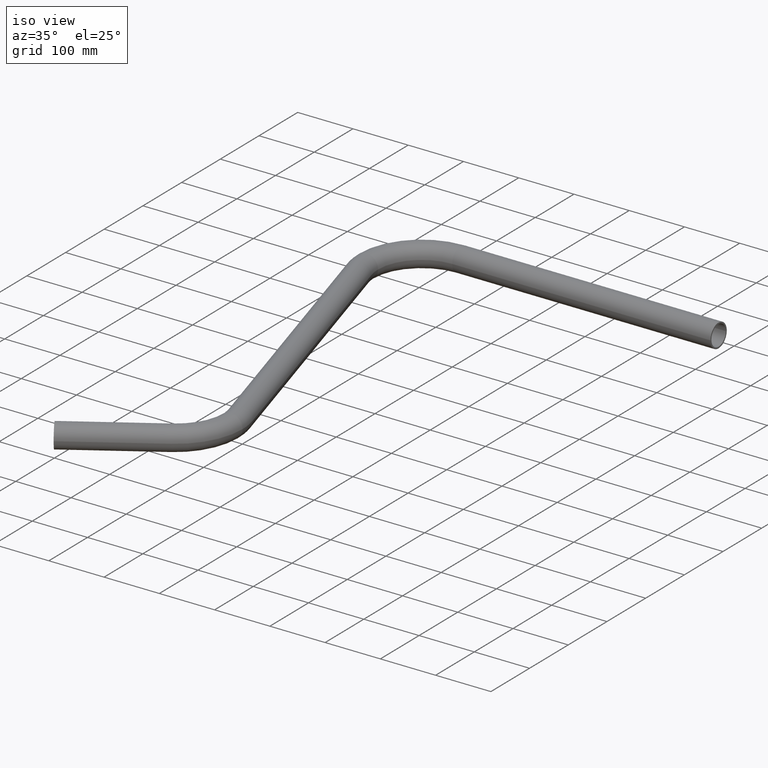
[diagram: clean part render]
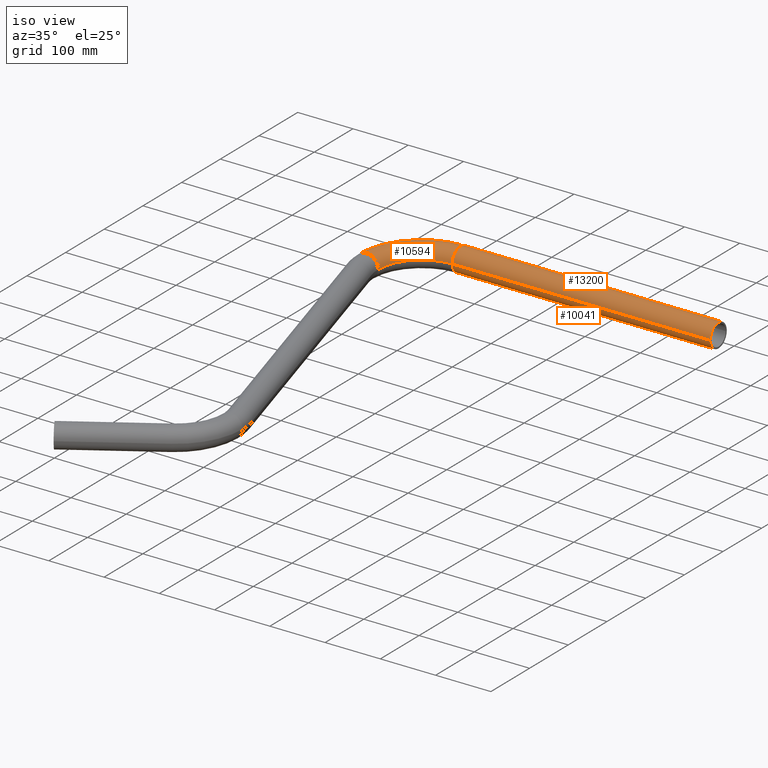
[diagram: same view with one multi-face feature highlighted, each face labeled with its STEP entity id]
A machine part, iso view. The highlighted faces form ONE feature: a constant-radius fillet chain: 3 tangent blend faces with common blend radius 21.2 mm. The faces share edges in the B-rep.
Their STEP definitions:
[1] entity #10041 (Cylinder):
#104 = DIRECTION ( 'NONE',  ( 1.000000000000000000, -4.751695585533869400E-016, 0.0000000000000000000 ) ) ;
#296 = CARTESIAN_POINT ( 'NONE',  ( 138.5397640499743100, 830.3035646201642500, 2.596251214192389600E-015 ) ) ;
#606 = FACE_OUTER_BOUND ( 'NONE', #9191, .T. ) ;
#977 = EDGE_CURVE ( 'NONE', #10557, #7068, #6277, .T. ) ;
#1151 = DIRECTION ( 'NONE',  ( 0.0000000000000000000, 1.000000000000000000, 0.0000000000000000000 ) ) ;
#1652 = ORIENTED_EDGE ( 'NONE', *, *, #977, .F. ) ;
#1708 = DIRECTION ( 'NONE',  ( 1.000000000000000000, -4.751695585533869400E-016, 0.0000000000000000000 ) ) ;
#2468 = ORIENTED_EDGE ( 'NONE', *, *, #7839, .T. ) ;
#2560 = DIRECTION ( 'NONE',  ( 1.000000000000000000, 1.532107773982715700E-014, -3.826221258505971600E-017 ) ) ;
#3075 = CYLINDRICAL_SURFACE ( 'NONE', #12829, 21.19999999999999600 ) ;
#4173 = CARTESIAN_POINT ( 'NONE',  ( 138.5397640499745900, 830.3035646201642500, 2.596251214192389200E-015 ) ) ;
#4392 = LINE ( 'NONE', #4173, #12602 ) ;
#5725 = CARTESIAN_POINT ( 'NONE',  ( 138.5397640499745900, 872.7035646201643400, 0.0000000000000000000 ) ) ;
#5770 = EDGE_CURVE ( 'NONE', #13050, #7068, #13046, .T. ) ;
#6015 = CARTESIAN_POINT ( 'NONE',  ( 138.5397640499743100, 851.5035646201643000, 0.0000000000000000000 ) ) ;
#6112 = ORIENTED_EDGE ( 'NONE', *, *, #10978, .F. ) ;
#6277 = CIRCLE ( 'NONE', #6385, 21.19999999999999600 ) ;
#6385 = AXIS2_PLACEMENT_3D ( 'NONE', #8767, #2560, #9795 ) ;
#7026 = ORIENTED_EDGE ( 'NONE', *, *, #5770, .T. ) ;
#7043 = CARTESIAN_POINT ( 'NONE',  ( 605.8352818879170600, 830.3035646201640200, 2.596251214192378500E-015 ) ) ;
#7052 = DIRECTION ( 'NONE',  ( 0.0000000000000000000, 1.000000000000000000, 0.0000000000000000000 ) ) ;
#7068 = VERTEX_POINT ( 'NONE', #11214 ) ;
#7642 = VERTEX_POINT ( 'NONE', #296 ) ;
#7839 = EDGE_CURVE ( 'NONE', #7642, #13050, #13247, .T. ) ;
#7883 = VECTOR ( 'NONE', #1708, 1000.000000000000000 ) ;
#8716 = AXIS2_PLACEMENT_3D ( 'NONE', #6015, #13241, #7052 ) ;
#8767 = CARTESIAN_POINT ( 'NONE',  ( 605.8352818879167200, 851.5035646201640700, 0.0000000000000000000 ) ) ;
#9191 = EDGE_LOOP ( 'NONE', ( #6112, #2468, #7026, #1652 ) ) ;
#9795 = DIRECTION ( 'NONE',  ( -1.571070317865787900E-014, 1.000000000000000000, 0.0000000000000000000 ) ) ;
#10041 = ADVANCED_FACE ( 'NONE', ( #606 ), #3075, .T. ) ;
#10557 = VERTEX_POINT ( 'NONE', #7043 ) ;
#10978 = EDGE_CURVE ( 'NONE', #7642, #10557, #4392, .T. ) ;
#11214 = CARTESIAN_POINT ( 'NONE',  ( 605.8352818879163800, 872.7035646201641200, 0.0000000000000000000 ) ) ;
#11514 = CARTESIAN_POINT ( 'NONE',  ( 138.5397640499745900, 851.5035646201643000, 0.0000000000000000000 ) ) ;
#12416 = DIRECTION ( 'NONE',  ( 1.000000000000000000, -4.751695585533869400E-016, 0.0000000000000000000 ) ) ;
#12602 = VECTOR ( 'NONE', #12416, 1000.000000000000000 ) ;
#12829 = AXIS2_PLACEMENT_3D ( 'NONE', #11514, #104, #1151 ) ;
#13046 = LINE ( 'NONE', #5725, #7883 ) ;
#13050 = VERTEX_POINT ( 'NONE', #13450 ) ;
#13241 = DIRECTION ( 'NONE',  ( 1.000000000000000000, -4.751695585533869400E-016, 0.0000000000000000000 ) ) ;
#13247 = CIRCLE ( 'NONE', #8716, 21.19999999999999600 ) ;
#13450 = CARTESIAN_POINT ( 'NONE',  ( 138.5397640499743100, 872.7035646201643400, 0.0000000000000000000 ) ) ;
[2] entity #13200 (Cylinder):
#296 = CARTESIAN_POINT ( 'NONE',  ( 138.5397640499743100, 830.3035646201642500, 2.596251214192389600E-015 ) ) ;
#1708 = DIRECTION ( 'NONE',  ( 1.000000000000000000, -4.751695585533869400E-016, 0.0000000000000000000 ) ) ;
#2759 = CIRCLE ( 'NONE', #11057, 21.19999999999999600 ) ;
#3159 = AXIS2_PLACEMENT_3D ( 'NONE', #4535, #11699, #11739 ) ;
#4173 = CARTESIAN_POINT ( 'NONE',  ( 138.5397640499745900, 830.3035646201642500, 2.596251214192389200E-015 ) ) ;
#4392 = LINE ( 'NONE', #4173, #12602 ) ;
#4535 = CARTESIAN_POINT ( 'NONE',  ( 138.5397640499745900, 851.5035646201643000, 0.0000000000000000000 ) ) ;
#4585 = CARTESIAN_POINT ( 'NONE',  ( 138.5397640499743100, 851.5035646201643000, 0.0000000000000000000 ) ) ;
#5416 = ORIENTED_EDGE ( 'NONE', *, *, #5770, .F. ) ;
#5592 = DIRECTION ( 'NONE',  ( 0.0000000000000000000, 1.000000000000000000, 0.0000000000000000000 ) ) ;
#5725 = CARTESIAN_POINT ( 'NONE',  ( 138.5397640499745900, 872.7035646201643400, 0.0000000000000000000 ) ) ;
#5752 = DIRECTION ( 'NONE',  ( 1.000000000000000000, 1.532107773982715700E-014, -3.826221258505971600E-017 ) ) ;
#5770 = EDGE_CURVE ( 'NONE', #13050, #7068, #13046, .T. ) ;
#6522 = ORIENTED_EDGE ( 'NONE', *, *, #7248, .T. ) ;
#6635 = AXIS2_PLACEMENT_3D ( 'NONE', #11957, #5752, #12978 ) ;
#7043 = CARTESIAN_POINT ( 'NONE',  ( 605.8352818879170600, 830.3035646201640200, 2.596251214192378500E-015 ) ) ;
#7068 = VERTEX_POINT ( 'NONE', #11214 ) ;
#7248 = EDGE_CURVE ( 'NONE', #13050, #7642, #2759, .T. ) ;
#7642 = VERTEX_POINT ( 'NONE', #296 ) ;
#7695 = EDGE_CURVE ( 'NONE', #7068, #10557, #11495, .T. ) ;
#7883 = VECTOR ( 'NONE', #1708, 1000.000000000000000 ) ;
#10557 = VERTEX_POINT ( 'NONE', #7043 ) ;
#10978 = EDGE_CURVE ( 'NONE', #7642, #10557, #4392, .T. ) ;
#11049 = CYLINDRICAL_SURFACE ( 'NONE', #3159, 21.19999999999999600 ) ;
#11057 = AXIS2_PLACEMENT_3D ( 'NONE', #4585, #11792, #5592 ) ;
#11214 = CARTESIAN_POINT ( 'NONE',  ( 605.8352818879163800, 872.7035646201641200, 0.0000000000000000000 ) ) ;
#11242 = ORIENTED_EDGE ( 'NONE', *, *, #7695, .F. ) ;
#11363 = FACE_OUTER_BOUND ( 'NONE', #11455, .T. ) ;
#11455 = EDGE_LOOP ( 'NONE', ( #6522, #12665, #11242, #5416 ) ) ;
#11495 = CIRCLE ( 'NONE', #6635, 21.19999999999999600 ) ;
#11699 = DIRECTION ( 'NONE',  ( 1.000000000000000000, -4.751695585533869400E-016, 0.0000000000000000000 ) ) ;
#11739 = DIRECTION ( 'NONE',  ( 0.0000000000000000000, 1.000000000000000000, 0.0000000000000000000 ) ) ;
#11792 = DIRECTION ( 'NONE',  ( 1.000000000000000000, -4.751695585533869400E-016, 0.0000000000000000000 ) ) ;
#11957 = CARTESIAN_POINT ( 'NONE',  ( 605.8352818879167200, 851.5035646201640700, 0.0000000000000000000 ) ) ;
#12416 = DIRECTION ( 'NONE',  ( 1.000000000000000000, -4.751695585533869400E-016, 0.0000000000000000000 ) ) ;
#12602 = VECTOR ( 'NONE', #12416, 1000.000000000000000 ) ;
#12665 = ORIENTED_EDGE ( 'NONE', *, *, #10978, .T. ) ;
#12978 = DIRECTION ( 'NONE',  ( -1.571070317865787900E-014, 1.000000000000000000, 0.0000000000000000000 ) ) ;
#13046 = LINE ( 'NONE', #5725, #7883 ) ;
#13050 = VERTEX_POINT ( 'NONE', #13450 ) ;
#13200 = ADVANCED_FACE ( 'NONE', ( #11363 ), #11049, .T. ) ;
#13450 = CARTESIAN_POINT ( 'NONE',  ( 138.5397640499743100, 872.7035646201643400, 0.0000000000000000000 ) ) ;
[3] entity #10594 (Torus):
#296 = CARTESIAN_POINT ( 'NONE',  ( 138.5397640499743100, 830.3035646201642500, 2.596251214192389600E-015 ) ) ;
#461 = CIRCLE ( 'NONE', #9739, 121.1999999999998900 ) ;
#1019 = DIRECTION ( 'NONE',  ( -1.000000000000000000, 0.0000000000000000000, 0.0000000000000000000 ) ) ;
#1313 = CARTESIAN_POINT ( 'NONE',  ( 17.33976404997469300, 751.5035646201644100, 0.0000000000000000000 ) ) ;
#1772 = CIRCLE ( 'NONE', #13254, 21.20000000000000300 ) ;
#2419 = CIRCLE ( 'NONE', #5023, 78.79999999999989800 ) ;
#2759 = CIRCLE ( 'NONE', #11057, 21.19999999999999600 ) ;
#2940 = DIRECTION ( 'NONE',  ( 0.0000000000000000000, -1.000000000000000000, 0.0000000000000000000 ) ) ;
#3318 = AXIS2_PLACEMENT_3D ( 'NONE', #5069, #8098, #12297 ) ;
#3569 = FACE_OUTER_BOUND ( 'NONE', #4305, .T. ) ;
#3879 = EDGE_CURVE ( 'NONE', #4528, #7642, #2419, .T. ) ;
#4305 = EDGE_LOOP ( 'NONE', ( #6590, #11626, #11561, #13436 ) ) ;
#4528 = VERTEX_POINT ( 'NONE', #11269 ) ;
#4585 = CARTESIAN_POINT ( 'NONE',  ( 138.5397640499743100, 851.5035646201643000, 0.0000000000000000000 ) ) ;
#5023 = AXIS2_PLACEMENT_3D ( 'NONE', #5108, #12333, #6133 ) ;
#5069 = CARTESIAN_POINT ( 'NONE',  ( 138.5397640499745900, 751.5035646201644100, 0.0000000000000000000 ) ) ;
#5108 = CARTESIAN_POINT ( 'NONE',  ( 138.5397640499745900, 751.5035646201644100, 2.596251214192389200E-015 ) ) ;
#5592 = DIRECTION ( 'NONE',  ( 0.0000000000000000000, 1.000000000000000000, 0.0000000000000000000 ) ) ;
#6133 = DIRECTION ( 'NONE',  ( -1.000000000000000000, 0.0000000000000000000, 0.0000000000000000000 ) ) ;
#6590 = ORIENTED_EDGE ( 'NONE', *, *, #6702, .F. ) ;
#6702 = EDGE_CURVE ( 'NONE', #13206, #13050, #461, .T. ) ;
#7225 = DIRECTION ( 'NONE',  ( -0.0000000000000000000, -0.0000000000000000000, -1.000000000000000000 ) ) ;
#7248 = EDGE_CURVE ( 'NONE', #13050, #7642, #2759, .T. ) ;
#7642 = VERTEX_POINT ( 'NONE', #296 ) ;
#8098 = DIRECTION ( 'NONE',  ( -0.0000000000000000000, -0.0000000000000000000, -1.000000000000000000 ) ) ;
#8739 = TOROIDAL_SURFACE ( 'NONE', #3318, 99.99999999999990100, 21.20000000000000300 ) ;
#9137 = CARTESIAN_POINT ( 'NONE',  ( 38.53976404997469300, 751.5035646201644100, 0.0000000000000000000 ) ) ;
#9739 = AXIS2_PLACEMENT_3D ( 'NONE', #13402, #7225, #1019 ) ;
#10169 = DIRECTION ( 'NONE',  ( 0.0000000000000000000, 0.0000000000000000000, -1.000000000000000000 ) ) ;
#10535 = EDGE_CURVE ( 'NONE', #4528, #13206, #1772, .T. ) ;
#10594 = ADVANCED_FACE ( 'NONE', ( #3569 ), #8739, .T. ) ;
#11057 = AXIS2_PLACEMENT_3D ( 'NONE', #4585, #11792, #5592 ) ;
#11269 = CARTESIAN_POINT ( 'NONE',  ( 59.73976404997468800, 751.5035646201644100, 2.596251214192389600E-015 ) ) ;
#11561 = ORIENTED_EDGE ( 'NONE', *, *, #3879, .T. ) ;
#11626 = ORIENTED_EDGE ( 'NONE', *, *, #10535, .F. ) ;
#11792 = DIRECTION ( 'NONE',  ( 1.000000000000000000, -4.751695585533869400E-016, 0.0000000000000000000 ) ) ;
#12297 = DIRECTION ( 'NONE',  ( -1.000000000000000000, 0.0000000000000000000, 0.0000000000000000000 ) ) ;
#12333 = DIRECTION ( 'NONE',  ( -0.0000000000000000000, -0.0000000000000000000, -1.000000000000000000 ) ) ;
#13050 = VERTEX_POINT ( 'NONE', #13450 ) ;
#13206 = VERTEX_POINT ( 'NONE', #1313 ) ;
#13254 = AXIS2_PLACEMENT_3D ( 'NONE', #9137, #2940, #10169 ) ;
#13402 = CARTESIAN_POINT ( 'NONE',  ( 138.5397640499745900, 751.5035646201644100, 0.0000000000000000000 ) ) ;
#13436 = ORIENTED_EDGE ( 'NONE', *, *, #7248, .F. ) ;
#13450 = CARTESIAN_POINT ( 'NONE',  ( 138.5397640499743100, 872.7035646201643400, 0.0000000000000000000 ) ) ;